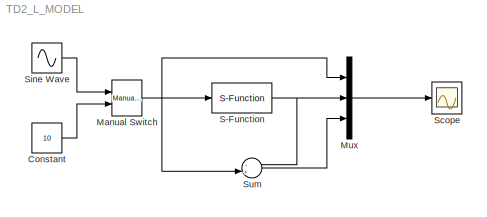
MODEL TD2_L_MODEL
KIND model
BLOCK [Constant] Constant
  SID = 113
  SampleTime = 0.01
  Value = 10
BLOCK [Reference] Manual Switch  REF=simulink/Signal\nRouting/Manual Switch
  FunctionWithSeparateData = off
  GeneratePreprocessorConditionals = off
  Ports = [2, 1]
  RTWMemSecDataConstants = Inherit from model
  RTWMemSecDataInternal = Inherit from model
  RTWMemSecDataParameters = Inherit from model
  RTWMemSecFuncExecute = Inherit from model
  RTWMemSecFuncInitTerm = Inherit from model
  SID = 114
  ShowPortLabels = FromPortIcon
  SourceBlock = simulink/Signal\nRouting/Manual Switch
  SourceType = Manual Switch
  SystemSampleTime = -1
  action = 0
  sw = 0
  varsize = off
BLOCK [Mux] Mux
  DisplayOption = bar
  Inputs = 3
  Ports = [3, 1]
  SID = 111
BLOCK [S-Function] S-Function
  EnableBusSupport = off
  FunctionName = TD2_L
  MaskCallbackString = |
  MaskEnableString = on,on
  MaskIconFrame = on
  MaskIconOpaque = on
  MaskIconRotate = none
  MaskIconUnits = autoscale
  MaskPortRotate = default
  MaskPromptString = r=|h=
  MaskStyleString = edit,edit
  MaskToolTipString = on,on
  MaskTunableValueString = on,on
  MaskValueString = 5|0.01
  MaskVariables = r=@1;h=@2;
  MaskVisibilityString = on,on
  Parameters = r,h
  Ports = [1, 1]
  SID = 116
BLOCK [Scope] Scope
  DataFormat = StructureWithTime
  Floating = off
  NumInputPorts = 1
  Ports = [1]
  SID = 3
  SampleTime = 0
  TimeRange = 5
  YMax = 10
  YMin = 0
BLOCK [Sin] Sine Wave
  Frequency = pi/2
  Ports = [0, 1]
  SID = 115
  SampleTime = 0
BLOCK [Sum] Sum
  IconShape = round
  InputSameDT = off
  Inputs = -+|
  OutDataTypeStr = Inherit: Inherit via internal rule
  Ports = [2, 1]
  SID = 112
  SaturateOnIntegerOverflow = off
LINE Constant:1 -> Manual Switch:2
NET Manual Switch:1 -> Mux:1, S-Function:1, Sum:2
LINE Mux:1 -> Scope:1
NET S-Function:1 -> Mux:2, Sum:1
LINE Sine Wave:1 -> Manual Switch:1
LINE Sum:1 -> Mux:3
note: NET lines group one-source signal fan-out (src -> all destinations, sorted); 1:1 wires keep LINE
